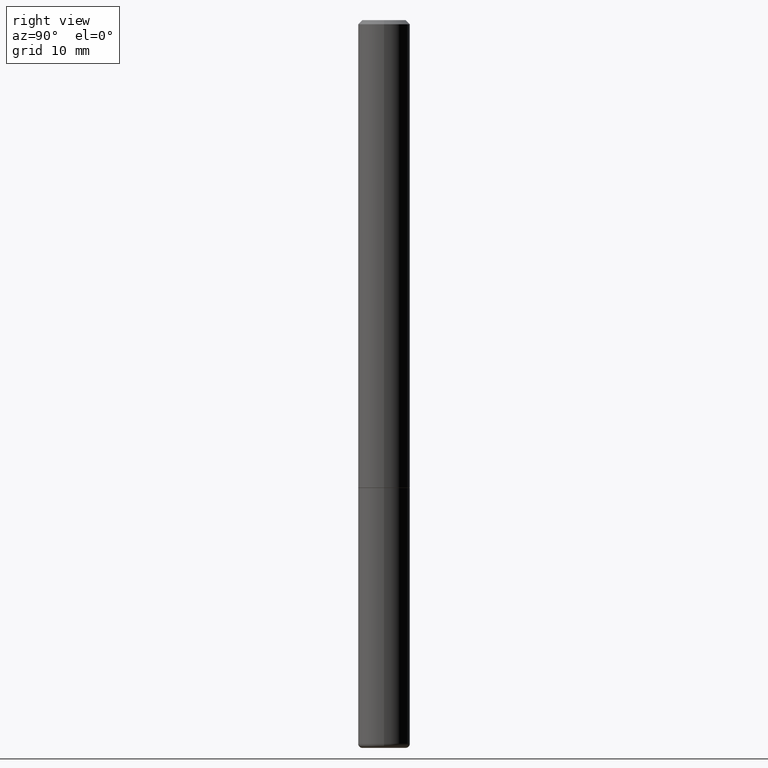
[diagram: clean part render]
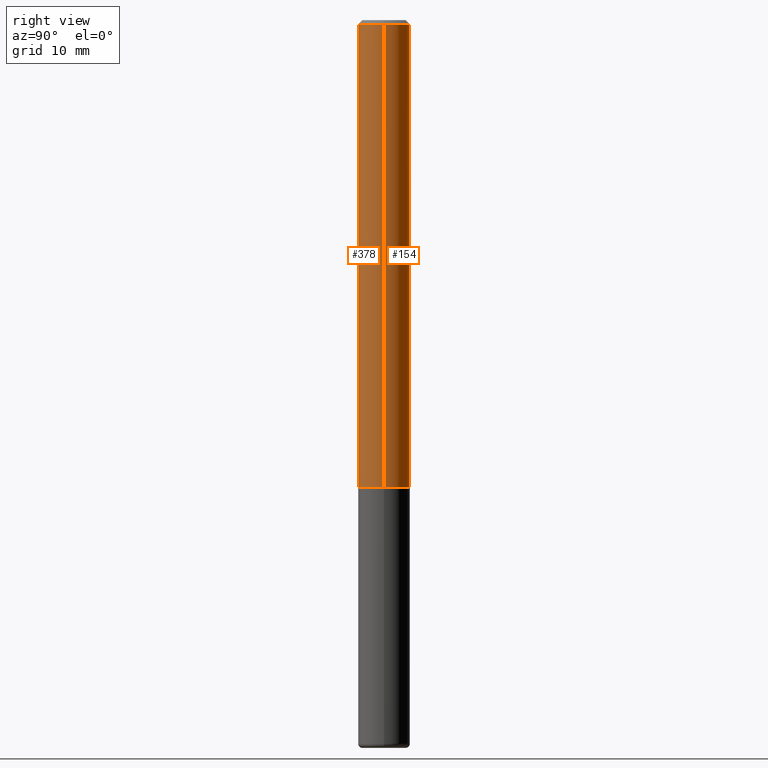
[diagram: same view with one multi-face feature highlighted, each face labeled with its STEP entity id]
A machine part, right view. The highlighted faces form ONE feature: a constant-radius fillet chain: 2 tangent blend faces with common blend radius 3.175 mm. The faces share edges in the B-rep.
Their STEP definitions:
[1] entity #154 (Cylinder):
#6 = CARTESIAN_POINT ( 'NONE',  ( 0.1250000000000000000, -8.725211865769015625E-15, -2.248999999999999222 ) ) ;
#14 = LINE ( 'NONE', #315, #21 ) ;
#21 = VECTOR ( 'NONE', #170, 39.37007874015748143 ) ;
#25 = VERTEX_POINT ( 'NONE', #6 ) ;
#31 = AXIS2_PLACEMENT_3D ( 'NONE', #258, #411, #488 ) ;
#56 = CARTESIAN_POINT ( 'NONE',  ( -0.1250000000000000000, -3.072907159217412699E-15, -2.248999999999999222 ) ) ;
#59 = DIRECTION ( 'NONE',  ( 1.000000000000000000, -6.982962677686265922E-15, 0.000000000000000000 ) ) ;
#66 = ORIENTED_EDGE ( 'NONE', *, *, #482, .T. ) ;
#97 = DIRECTION ( 'NONE',  ( -2.445468806185136597E-29, 3.491481338843145583E-15, 1.000000000000000000 ) ) ;
#111 = EDGE_CURVE ( 'NONE', #25, #191, #235, .T. ) ;
#120 = DIRECTION ( 'NONE',  ( -2.445468806185136877E-29, 3.491481338843145188E-15, 1.000000000000000000 ) ) ;
#134 = CIRCLE ( 'NONE', #483, 0.1249999999999993200 ) ;
#154 = ADVANCED_FACE ( 'NONE', ( #160 ), #349, .T. ) ;
#160 = FACE_OUTER_BOUND ( 'NONE', #377, .T. ) ;
#164 = VECTOR ( 'NONE', #120, 39.37007874015748143 ) ;
#170 = DIRECTION ( 'NONE',  ( -2.445468806185136877E-29, 3.491481338843145188E-15, 1.000000000000000000 ) ) ;
#191 = VERTEX_POINT ( 'NONE', #205 ) ;
#205 = CARTESIAN_POINT ( 'NONE',  ( 0.1249999999999993200, -9.273918764983000103E-16, -0.02000000000000008715 ) ) ;
#210 = VERTEX_POINT ( 'NONE', #56 ) ;
#212 = ORIENTED_EDGE ( 'NONE', *, *, #240, .T. ) ;
#221 = CARTESIAN_POINT ( 'NONE',  ( 0.1249999999999996531, -8.728703347107809722E-16, 6.095220969744903626E-30 ) ) ;
#235 = LINE ( 'NONE', #221, #164 ) ;
#238 = CARTESIAN_POINT ( 'NONE',  ( -0.1249999999999993200, 8.030407079339153075E-16, -0.02000000000000008715 ) ) ;
#240 = EDGE_CURVE ( 'NONE', #210, #249, #14, .T. ) ;
#249 = VERTEX_POINT ( 'NONE', #238 ) ;
#258 = CARTESIAN_POINT ( 'NONE',  ( 0.000000000000000000, 0.000000000000000000, 0.000000000000000000 ) ) ;
#289 = ORIENTED_EDGE ( 'NONE', *, *, #111, .F. ) ;
#292 = CARTESIAN_POINT ( 'NONE',  ( 4.890937612370294178E-31, -6.982962677686321191E-17, -0.02000000000000008715 ) ) ;
#315 = CARTESIAN_POINT ( 'NONE',  ( -0.1249999999999996531, 8.881784197001227671E-16, -6.148668862818615412E-30 ) ) ;
#330 = DIRECTION ( 'NONE',  ( 1.000000000000000000, -6.982962677686262766E-15, 0.000000000000000000 ) ) ;
#349 = CYLINDRICAL_SURFACE ( 'NONE', #31, 0.1249999999999996531 ) ;
#359 = ORIENTED_EDGE ( 'NONE', *, *, #383, .F. ) ;
#377 = EDGE_LOOP ( 'NONE', ( #66, #212, #359, #289 ) ) ;
#383 = EDGE_CURVE ( 'NONE', #191, #249, #134, .T. ) ;
#410 = CARTESIAN_POINT ( 'NONE',  ( 5.499859345110370619E-29, -7.852341531058232286E-15, -2.248999999999999222 ) ) ;
#411 = DIRECTION ( 'NONE',  ( -2.445468806185136597E-29, 3.491481338843145583E-15, 1.000000000000000000 ) ) ;
#414 = AXIS2_PLACEMENT_3D ( 'NONE', #410, #444, #330 ) ;
#444 = DIRECTION ( 'NONE',  ( -2.445468806185136597E-29, 3.491481338843145583E-15, 1.000000000000000000 ) ) ;
#482 = EDGE_CURVE ( 'NONE', #25, #210, #492, .T. ) ;
#483 = AXIS2_PLACEMENT_3D ( 'NONE', #292, #97, #59 ) ;
#488 = DIRECTION ( 'NONE',  ( 1.000000000000000000, -6.982962677686267499E-15, 4.876176775795936353E-29 ) ) ;
#492 = CIRCLE ( 'NONE', #414, 0.1250000000000000000 ) ;
[2] entity #378 (Cylinder):
#5 = CIRCLE ( 'NONE', #133, 0.1249999999999993200 ) ;
#6 = CARTESIAN_POINT ( 'NONE',  ( 0.1250000000000000000, -8.725211865769015625E-15, -2.248999999999999222 ) ) ;
#14 = LINE ( 'NONE', #315, #21 ) ;
#15 = ORIENTED_EDGE ( 'NONE', *, *, #115, .T. ) ;
#21 = VECTOR ( 'NONE', #170, 39.37007874015748143 ) ;
#25 = VERTEX_POINT ( 'NONE', #6 ) ;
#33 = CARTESIAN_POINT ( 'NONE',  ( 5.499859345110370619E-29, -7.852341531058232286E-15, -2.248999999999999222 ) ) ;
#54 = DIRECTION ( 'NONE',  ( 1.000000000000000000, -6.982962677686265922E-15, 0.000000000000000000 ) ) ;
#56 = CARTESIAN_POINT ( 'NONE',  ( -0.1250000000000000000, -3.072907159217412699E-15, -2.248999999999999222 ) ) ;
#60 = AXIS2_PLACEMENT_3D ( 'NONE', #33, #184, #372 ) ;
#105 = FACE_OUTER_BOUND ( 'NONE', #291, .T. ) ;
#111 = EDGE_CURVE ( 'NONE', #25, #191, #235, .T. ) ;
#115 = EDGE_CURVE ( 'NONE', #210, #25, #457, .T. ) ;
#120 = DIRECTION ( 'NONE',  ( -2.445468806185136877E-29, 3.491481338843145188E-15, 1.000000000000000000 ) ) ;
#125 = AXIS2_PLACEMENT_3D ( 'NONE', #253, #138, #437 ) ;
#133 = AXIS2_PLACEMENT_3D ( 'NONE', #353, #241, #54 ) ;
#138 = DIRECTION ( 'NONE',  ( -2.445468806185136597E-29, 3.491481338843145583E-15, 1.000000000000000000 ) ) ;
#141 = ORIENTED_EDGE ( 'NONE', *, *, #111, .T. ) ;
#164 = VECTOR ( 'NONE', #120, 39.37007874015748143 ) ;
#170 = DIRECTION ( 'NONE',  ( -2.445468806185136877E-29, 3.491481338843145188E-15, 1.000000000000000000 ) ) ;
#184 = DIRECTION ( 'NONE',  ( -2.445468806185136597E-29, 3.491481338843145583E-15, 1.000000000000000000 ) ) ;
#191 = VERTEX_POINT ( 'NONE', #205 ) ;
#205 = CARTESIAN_POINT ( 'NONE',  ( 0.1249999999999993200, -9.273918764983000103E-16, -0.02000000000000008715 ) ) ;
#206 = EDGE_CURVE ( 'NONE', #249, #191, #5, .T. ) ;
#210 = VERTEX_POINT ( 'NONE', #56 ) ;
#221 = CARTESIAN_POINT ( 'NONE',  ( 0.1249999999999996531, -8.728703347107809722E-16, 6.095220969744903626E-30 ) ) ;
#235 = LINE ( 'NONE', #221, #164 ) ;
#238 = CARTESIAN_POINT ( 'NONE',  ( -0.1249999999999993200, 8.030407079339153075E-16, -0.02000000000000008715 ) ) ;
#240 = EDGE_CURVE ( 'NONE', #210, #249, #14, .T. ) ;
#241 = DIRECTION ( 'NONE',  ( -2.445468806185136597E-29, 3.491481338843145583E-15, 1.000000000000000000 ) ) ;
#249 = VERTEX_POINT ( 'NONE', #238 ) ;
#253 = CARTESIAN_POINT ( 'NONE',  ( 0.000000000000000000, 0.000000000000000000, 0.000000000000000000 ) ) ;
#257 = CYLINDRICAL_SURFACE ( 'NONE', #125, 0.1249999999999996531 ) ;
#291 = EDGE_LOOP ( 'NONE', ( #311, #15, #141, #319 ) ) ;
#311 = ORIENTED_EDGE ( 'NONE', *, *, #240, .F. ) ;
#315 = CARTESIAN_POINT ( 'NONE',  ( -0.1249999999999996531, 8.881784197001227671E-16, -6.148668862818615412E-30 ) ) ;
#319 = ORIENTED_EDGE ( 'NONE', *, *, #206, .F. ) ;
#353 = CARTESIAN_POINT ( 'NONE',  ( 4.890937612370294178E-31, -6.982962677686321191E-17, -0.02000000000000008715 ) ) ;
#372 = DIRECTION ( 'NONE',  ( 1.000000000000000000, -6.982962677686262766E-15, 0.000000000000000000 ) ) ;
#378 = ADVANCED_FACE ( 'NONE', ( #105 ), #257, .T. ) ;
#437 = DIRECTION ( 'NONE',  ( 1.000000000000000000, -6.982962677686267499E-15, 4.876176775795936353E-29 ) ) ;
#457 = CIRCLE ( 'NONE', #60, 0.1250000000000000000 ) ;